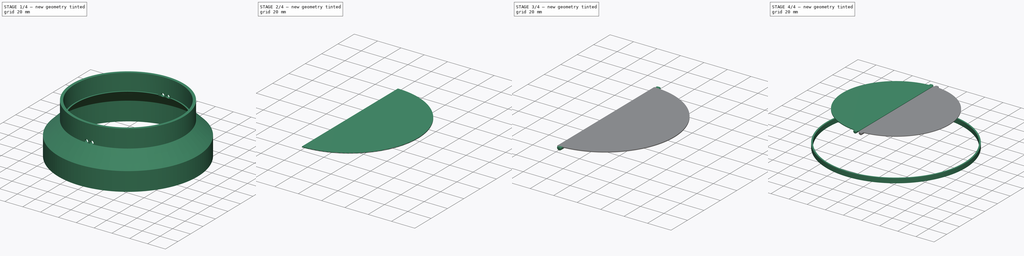
[diagram: build sequence overview — one tinted view per stage of 4, left to right]
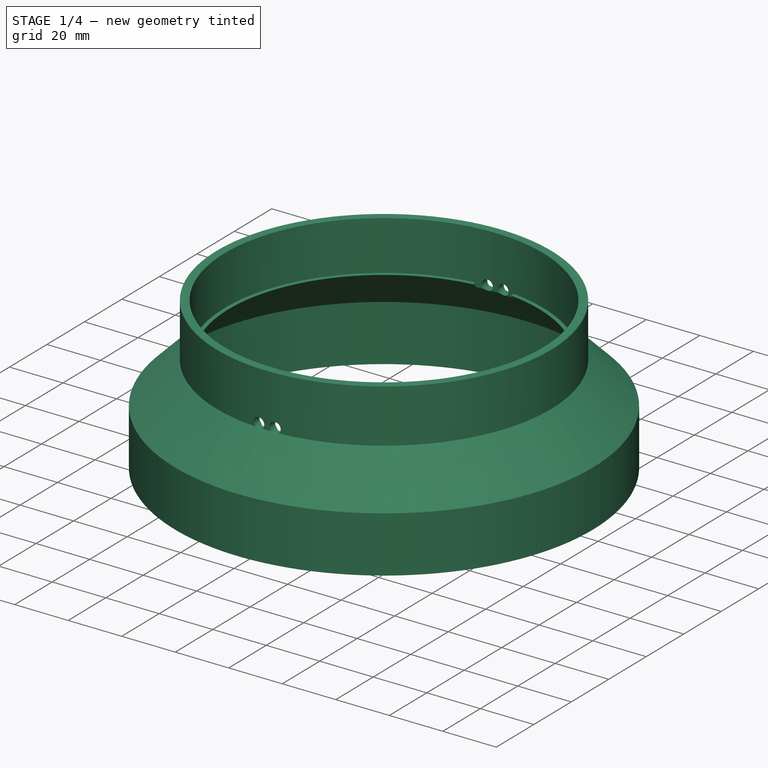
[diagram: stage 1 of 4 — iso view after this stage's code; geometry added in this stage tinted green]
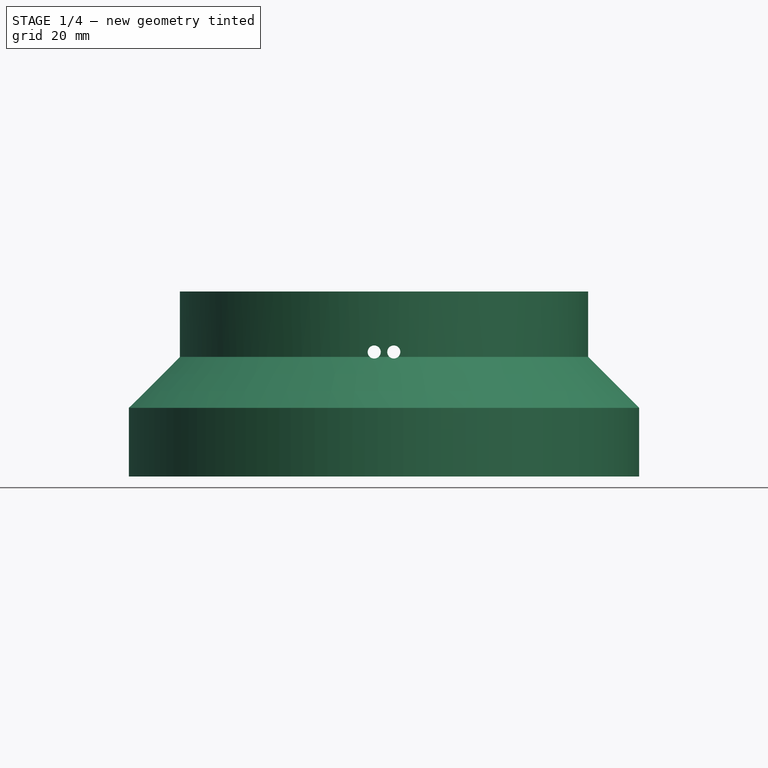
[diagram: stage 1 of 4 — front view after this stage's code; geometry added in this stage tinted green]
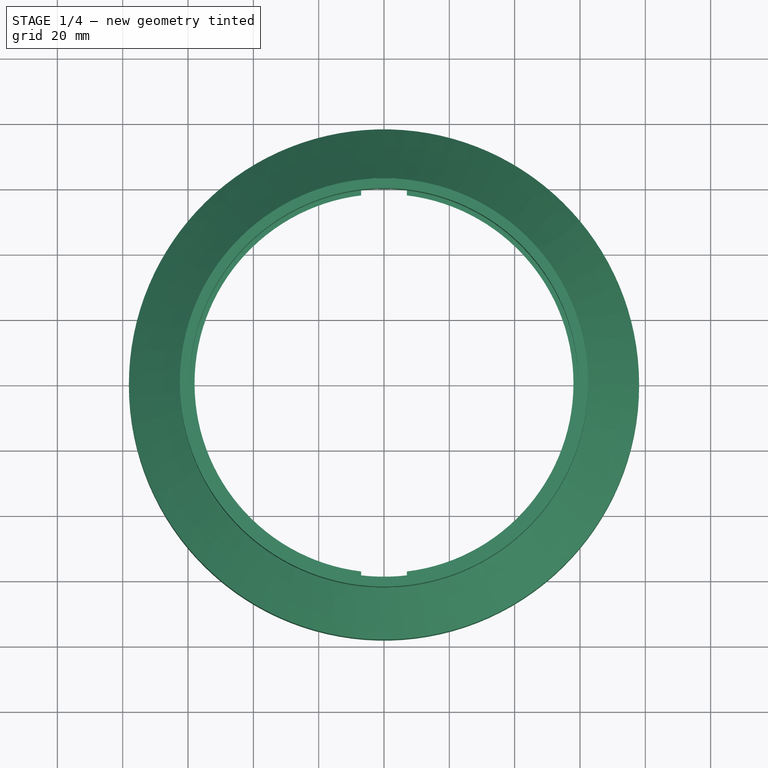
[diagram: stage 1 of 4 — top view after this stage's code; geometry added in this stage tinted green]
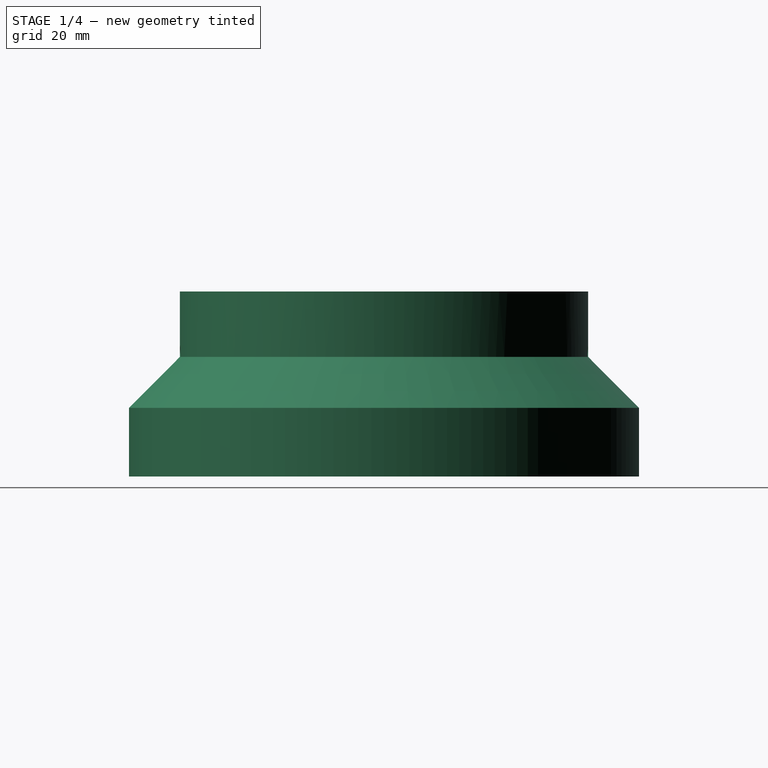
[diagram: stage 1 of 4 — right view after this stage's code; geometry added in this stage tinted green]
FCSTD DOCUMENT  (FreeCAD 0.21R33694 (Git))
Label: adapter
License: All rights reserved
LicenseURL: http://en.wikipedia.org/wiki/All_rights_reserved
objects: Sketcher::SketchObject×8, PartDesign::Body×3, PartDesign::Pocket×3, PartDesign::Plane×3, PartDesign::Pad×3, Part::FeaturePython×3, PartDesign::Revolution×2, PartDesign::Fillet×2, Spreadsheet::Sheet×1, PartDesign::SubShapeBinder×1, PartDesign::ShapeBinder×1
note: 39 computed .brp shape members not serialized (recipe doc carries the construction recipe); baked Part::Feature solids carry a one-line shape summary decoded from their .brp

FEATURE [PartDesign::Body] Body001  label="ring"
  Group = -> [Sketch001,Revolution]
  Origin = -> Origin001
  Tip = -> Revolution
FEATURE [PartDesign::Revolution] Revolution001
  Angle = 360
  Axis = (0,-2e-16,1)
  Base = (0,0,0)
  Placement = pos=(0,0,0) rot=(1,0,0;1.5708rad)
  Profile = -> Sketch
  ReferenceAxis = -> Sketch [V_Axis]
  Reversed = true
FEATURE [Sketcher::SketchObject] Sketch002  label="Holes"
  ExternalGeometry = -> [Sketch,Revolution001]
  FullyConstrained = true
  MapMode = 5
  Placement = pos=(0,0,0) rot=(1,0,0;1.5708rad)
  Support = -> [XZ_Plane]
  expr: Constraints[3] = <<dims>>.hole_diameter
  sketch-geometry (3):
    g0: Circle CenterX=3 CenterY=38.1 CenterZ=0 NormalX=0 NormalY=0 NormalZ=1 AngleXU=0 Radius=2
    g1: GeomPoint X=1 Y=38.1 Z=0
    g2: Circle CenterX=-3 CenterY=38.1 CenterZ=0 NormalX=0 NormalY=0 NormalZ=1 AngleXU=0 Radius=2
  constraints (7):
    c: PointOnObject(g1,g0)
    c: Horizontal(g1,g0)
    c: DistanceX(g-1,g1) = 1
    c: Diameter(g0) = 4
    c: Equal(g0,g2) = 4
    c: Symmetric(g0,g2,g-2)
    c: PointOnObject(g0,g-4)
FEATURE [PartDesign::Pocket] Pocket
  BaseFeature = -> Revolution001
  Direction = (0,1,2e-16)
  Length = 5
  Length2 = 5
  Midplane = true
  Placement = pos=(0,0,0) rot=(1,0,0;1.5708rad)
  Profile = -> Sketch002
  ReferenceAxis = -> Sketch002 [N_Axis]
  Type = 1
FEATURE [PartDesign::Plane] DatumPlane002  label="Plane-ledge"
  Length = 64.3597
  MapMode = 45
  Placement = pos=(-3.7e-14,-5.3e-15,38.1) rot=(0,0,1;1.5708rad)
  ResizeMode = 0
  Support = -> [Pocket]
  Width = 117.46
FEATURE [Sketcher::SketchObject] Sketch003  label="Sketch-ledge-cutout"
  ExternalGeometry = -> [Pocket,Sketch002]
  FullyConstrained = true
  MapMode = 5
  Placement = pos=(-3.7e-14,-5.3e-15,38.1) rot=(0,0,1;1.5708rad)
  Support = -> [DatumPlane002]
  expr: Constraints[11] = .Constraints.ledge_room
  sketch-geometry (4):
    g0: LineSegment StartX=-59.0868 StartY=7 StartZ=0 EndX=59.0868 EndY=7 EndZ=0
    g1: LineSegment StartX=59.0868 StartY=-7 StartZ=0 EndX=-59.0868 EndY=-7 EndZ=0
    g2: ArcOfCircle CenterX=-3.5e-15 CenterY=-3.76e-14 CenterZ=0 NormalX=0 NormalY=0 NormalZ=1 AngleXU=0 Radius=59.5 StartAngle=3.02367 EndAngle=3.25951
    g3: ArcOfCircle CenterX=-3.5e-15 CenterY=-3.76e-14 CenterZ=0 NormalX=0 NormalY=0 NormalZ=1 AngleXU=0 Radius=59.5 StartAngle=6.16527 EndAngle=6.40111
  constraints (12):
    c: PointOnObject(g0,g-3)
    c: PointOnObject(g0,g-3)
    c: Horizontal(g0)
    c: Horizontal(g1)
    c: Coincident(g2,g-3)
    c: Coincident(g2,g1)
    c: Coincident(g2,g0)
    c: Coincident(g3,g2)
    c: Coincident(g3,g0)
    c: Coincident(g3,g1)
    c: Distance(g-4,g0) = 2  'ledge_room'
    c: Distance(g-5,g1) = 2
FEATURE [PartDesign::Pocket] Pocket001
  BaseFeature = -> Pocket
  Direction = (0,2e-16,-1)
  Length = 5
  Length2 = 5
  Placement = pos=(0,0,0) rot=(1,0,0;1.5708rad)
  Profile = -> Sketch003
  ReferenceAxis = -> Sketch003 [N_Axis]
  Type = 1
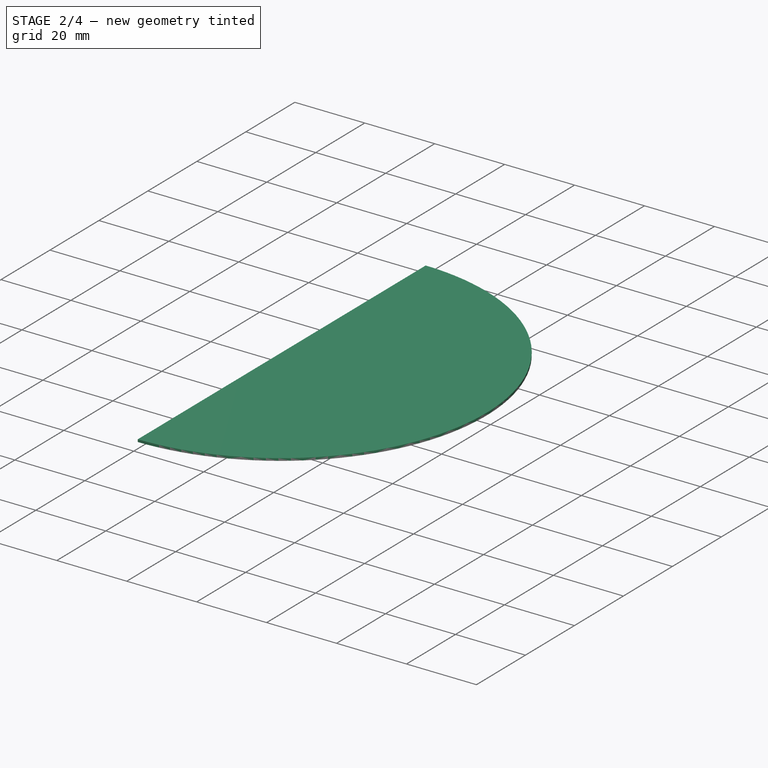
[diagram: stage 2 of 4 — iso view after this stage's code; geometry added in this stage tinted green]
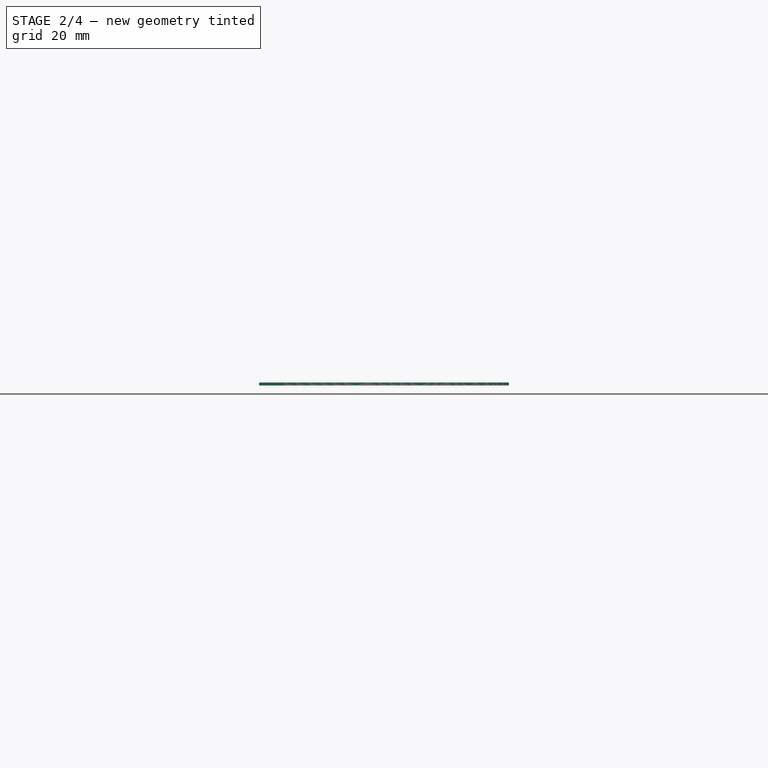
[diagram: stage 2 of 4 — front view after this stage's code; geometry added in this stage tinted green]
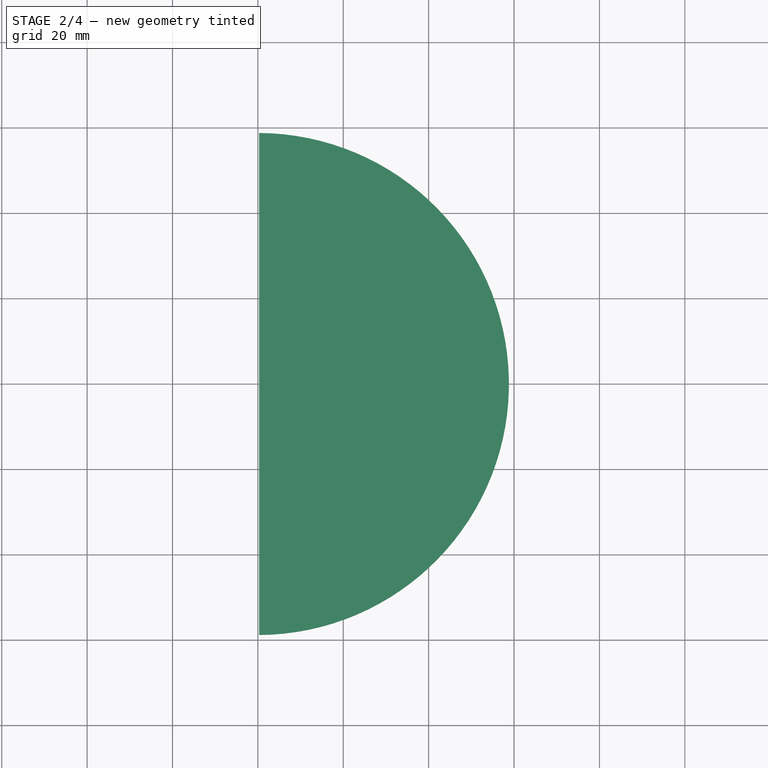
[diagram: stage 2 of 4 — top view after this stage's code; geometry added in this stage tinted green]
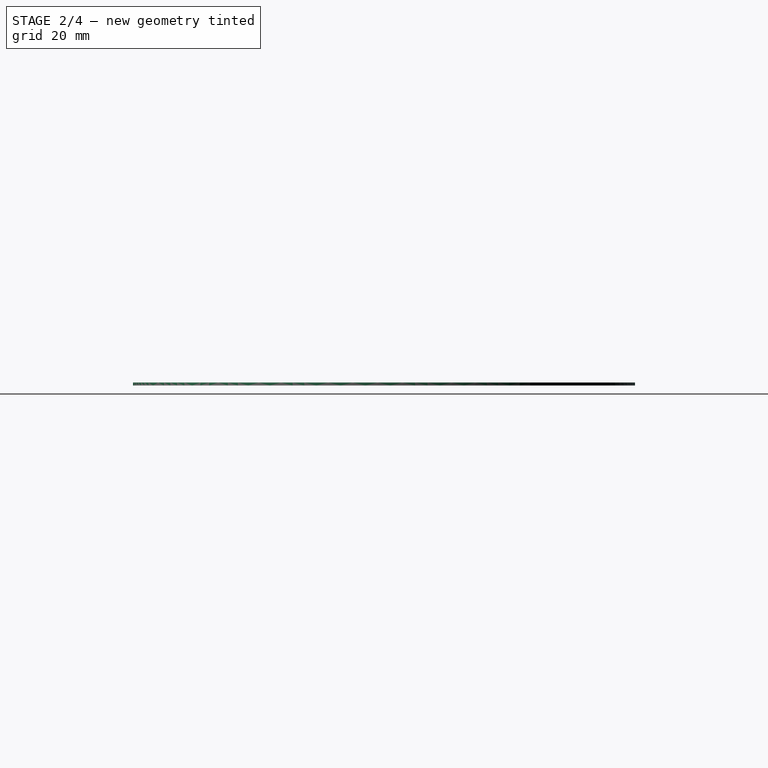
[diagram: stage 2 of 4 — right view after this stage's code; geometry added in this stage tinted green]
FEATURE [PartDesign::SubShapeBinder] Binder
  BindCopyOnChange = 0
  BindMode = 0
  ClaimChildren = false
  Context = -> Body002 [Binder.]
  Fuse = false
  MakeFace = true
  OffsetFill = false
  OffsetIntersection = false
  OffsetJoinType = 0
  OffsetOpenResult = false
  PartialLoad = false
  Relative = true
  Support = -> [Body[Sketch002.Edge1]]
  _Version = 2
FEATURE [PartDesign::Plane] DatumPlane003
  Length = 178.78
  MapMode = 5
  Placement = pos=(0,0,0) rot=(0,0.707107,0.707107;3.14159rad)
  ResizeMode = 0
  Support = -> [Binder]
  Width = 104.18
FEATURE [Sketcher::SketchObject] Sketch006  label="Sketch rotation stop"
  AttachmentOffset = pos=(0,0,4) rot=(0,0,1;0rad)
  ExternalGeometry = -> [Pocket001,Sketch002]
  FullyConstrained = true
  MapMode = 5
  Placement = pos=(-3.71e-14,-6.1e-15,42.1) rot=(0,0,1;1.5708rad)
  Support = -> [DatumPlane002]
  expr: .AttachmentOffset.Base.z = <<dims>>.hole_diameter
  sketch-geometry (5):
    g0: LineSegment StartX=59.4243 StartY=3 StartZ=0 EndX=56.9243 EndY=3 EndZ=0
    g1: LineSegment StartX=56.9243 StartY=3 StartZ=0 EndX=56.9243 EndY=-3 EndZ=0
    g2: LineSegment StartX=56.9243 StartY=-3 StartZ=0 EndX=59.4243 EndY=-3 EndZ=0
    g3: ArcOfCircle CenterX=-3.5e-15 CenterY=-3.76e-14 CenterZ=0 NormalX=0 NormalY=0 NormalZ=1 AngleXU=0 Radius=59.5 StartAngle=6.23274 EndAngle=6.33363
    g4: GeomPoint X=-1.8e-15 Y=-3 Z=0
  constraints (13):
    c: PointOnObject(g0,g-3)
    c: Horizontal(g0)
    c: Coincident(g0,g1)
    c: Coincident(g1,g2)
    c: PointOnObject(g2,g-3)
    c: Horizontal(g2)
    c: Coincident(g3,g-3)
    c: Coincident(g3,g0)
    c: PointOnObject(g3,g2)
    c: Symmetric(g-4,g-4,g4)
    c: Symmetric(g1,g0,g-1)
    c: Horizontal(g4,g1)
    c: DistanceX(g2,g2) = 2.5
FEATURE [PartDesign::Pad] Pad002  label="Pad rotation stop"
  BaseFeature = -> Pocket001
  Direction = (0,-2e-16,1)
  Length = 2.5
  Length2 = 10
  Placement = pos=(0,0,0) rot=(1,0,0;1.5708rad)
  Profile = -> Sketch006
  ReferenceAxis = -> Sketch006 [N_Axis]
  Type = 0
FEATURE [Sketcher::SketchObject] Sketch007
  ExternalGeometry = -> [Pad002]
  FullyConstrained = true
  MapMode = 5
  Placement = pos=(-3,1.3e-15,-1e-16) rot=(0.707107,0,-0.707107;3.14159rad)
  Support = -> [Pad002]
  sketch-geometry (3):
    g0: LineSegment StartX=-44.6 StartY=-56.9243 StartZ=0 EndX=-42.1 EndY=-59.4243 EndZ=0
    g1: LineSegment StartX=-42.1 StartY=-59.4243 StartZ=0 EndX=-42.1 EndY=-56.9243 EndZ=0
    g2: LineSegment StartX=-42.1 StartY=-56.9243 StartZ=0 EndX=-44.6 EndY=-56.9243 EndZ=0
  constraints (6):
    c: Coincident(g-3,g0)
    c: Coincident(g0,g-4)
    c: Coincident(g0,g1)
    c: Coincident(g1,g-3)
    c: Coincident(g1,g2)
    c: Coincident(g2,g0)
FEATURE [PartDesign::Pocket] Pocket002
  BaseFeature = -> Pad002
  Direction = (1,0,0)
  Length = 0
  Length2 = 5
  Placement = pos=(0,0,0) rot=(1,0,0;1.5708rad)
  Profile = -> Sketch007
  ReferenceAxis = -> Sketch007 [N_Axis]
  Reversed = true
  Type = 3
  UpToFace = -> Pad002 [Face27]
  UseCustomVector = true
FEATURE [PartDesign::Body] Body  label="tube"
  Group = -> [Sketch,Revolution001,Sketch002,Pocket,DatumPlane002,Sketch003,Pocket001,Sketch006,Pad002,Sketch007,Pocket002]
  Origin = -> Origin
  Tip = -> Pocket002
FEATURE [PartDesign::ShapeBinder] ShapeBinder
  Support = -> [Body]
  TraceSupport = false
FEATURE [PartDesign::Plane] DatumPlane
  Length = 187.44
  MapMode = 45
  Placement = pos=(2.7e-14,-1.6e-14,38.1) rot=(0,0,1;1.5708rad)
  ResizeMode = 0
  Support = -> [ShapeBinder]
  Width = 187.44
FEATURE [Sketcher::SketchObject] Sketch004  label="Sketch-Lid"
  ExternalGeometry = -> [ShapeBinder]
  FullyConstrained = true
  MapMode = 5
  Placement = pos=(2.7e-14,-1.6e-14,38.1) rot=(0,0,1;1.5708rad)
  Support = -> [DatumPlane]
  sketch-geometry (3):
    g0: Circle CenterX=5.1e-15 CenterY=2.61e-14 CenterZ=0 NormalX=0 NormalY=0 NormalZ=1 AngleXU=0 Radius=58.8
    g1: ArcOfCircle CenterX=5.1e-15 CenterY=2.61e-14 CenterZ=0 NormalX=0 NormalY=0 NormalZ=1 AngleXU=0 Radius=58.8 StartAngle=3.14669 EndAngle=6.27808
    g2: LineSegment StartX=58.7992 StartY=-0.3 StartZ=0 EndX=-58.7992 EndY=-0.3 EndZ=0
  constraints (8):
    c: Coincident(g0,g-3)
    c: Distance(g0,g-3) = 0.7
    c: PointOnObject(g1,g0)
    c: Coincident(g1,g0)
    c: Coincident(g2,g1)
    c: Coincident(g2,g1)
    c: Distance(g1,g2) = 0.3
    c: Horizontal(g2)
FEATURE [PartDesign::Pad] Pad  label="Pad-Lid"
  Direction = (-1e-16,-1e-16,1)
  Length = 0.7
  Length2 = 10
  Placement = pos=(2.7e-14,-1.6e-14,38.1) rot=(0,0,1;1.5708rad)
  Profile = -> Sketch004
  ReferenceAxis = -> Sketch004 [N_Axis]
  Type = 0
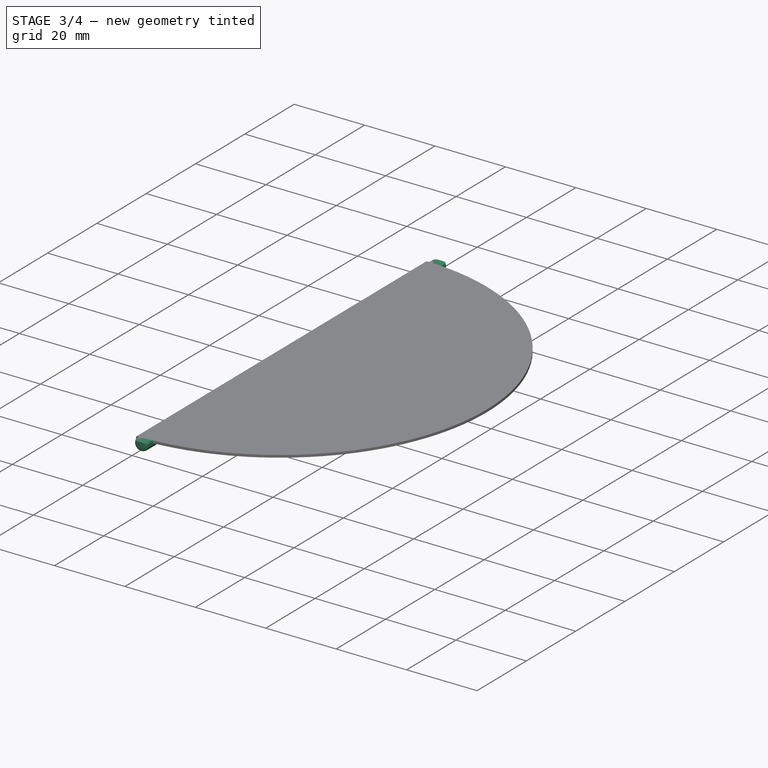
[diagram: stage 3 of 4 — iso view after this stage's code; geometry added in this stage tinted green]
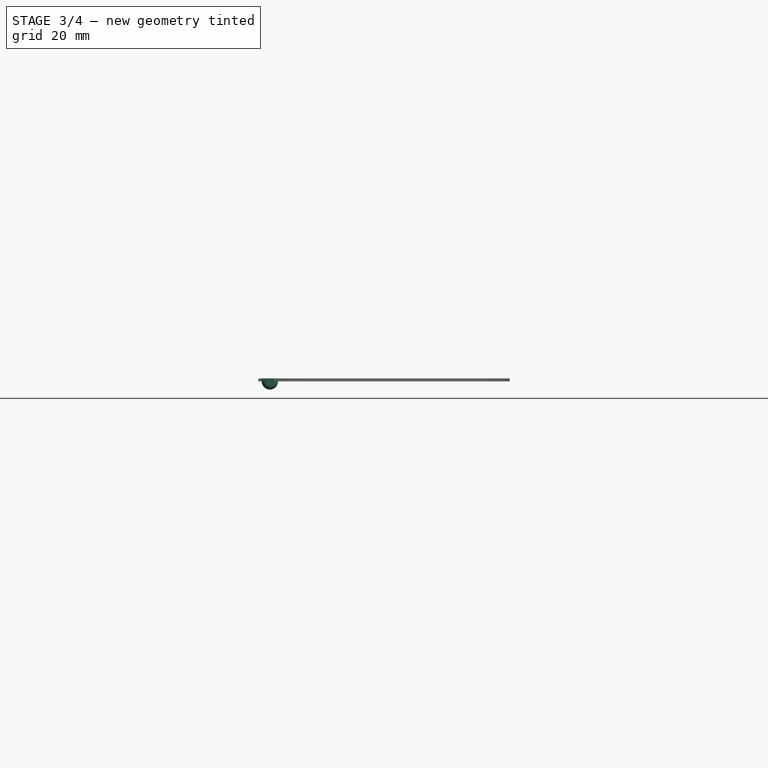
[diagram: stage 3 of 4 — front view after this stage's code; geometry added in this stage tinted green]
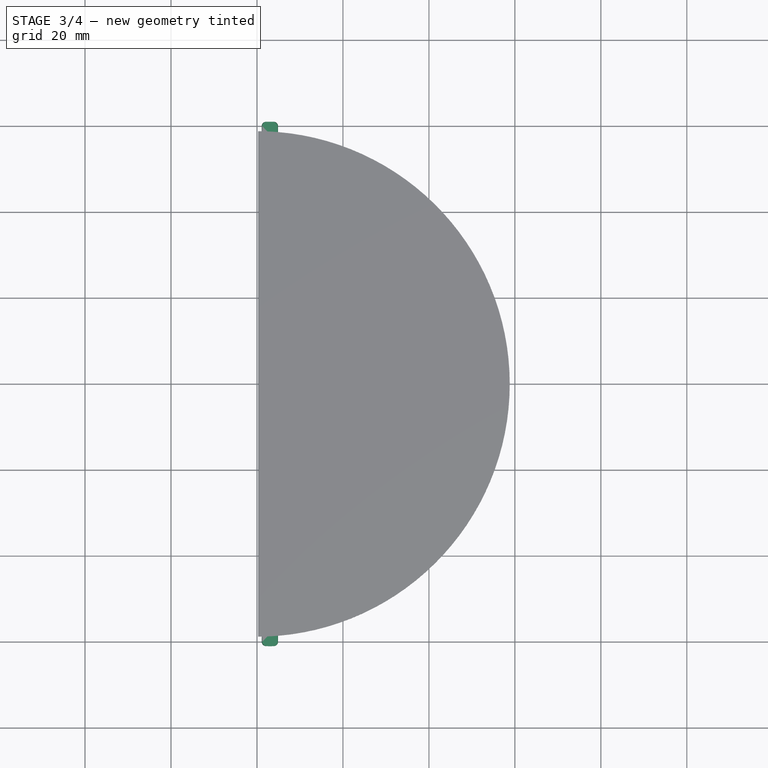
[diagram: stage 3 of 4 — top view after this stage's code; geometry added in this stage tinted green]
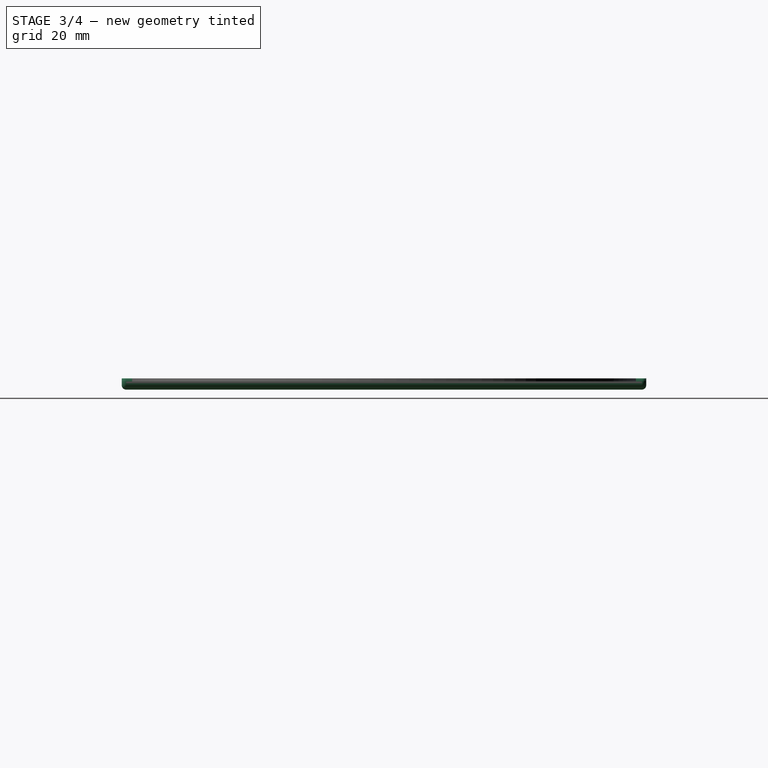
[diagram: stage 3 of 4 — right view after this stage's code; geometry added in this stage tinted green]
FEATURE [Sketcher::SketchObject] Sketch005  label="Sketch-Axis"
  ExternalGeometry = -> [Pad,Binder]
  FullyConstrained = true
  MapMode = 5
  Placement = pos=(0,0,0) rot=(0,0.707107,0.707107;3.14159rad)
  Support = -> [DatumPlane003]
  sketch-geometry (3):
    g0: ArcOfCircle CenterX=-3 CenterY=38.1 CenterZ=0 NormalX=0 NormalY=0 NormalZ=1 AngleXU=0 Radius=1.9 StartAngle=2.76428 EndAngle=6.6605
    g1: LineSegment StartX=-4.76635 StartY=38.8 StartZ=0 EndX=-1.23365 EndY=38.8 EndZ=0
    g2: Circle CenterX=-3 CenterY=38.1 CenterZ=0 NormalX=0 NormalY=0 NormalZ=1 AngleXU=0 Radius=1.9
  constraints (8):
    c: Coincident(g0,g-4)
    c: Coincident(g1,g0)
    c: Coincident(g1,g0)
    c: Coincident(g2,g0)
    c: Distance(g2,g-4) = 0.1
    c: PointOnObject(g0,g2)
    c: PointOnObject(g0,g-3)
    c: PointOnObject(g0,g-3)
FEATURE [PartDesign::Pad] Pad001  label="Axis"
  BaseFeature = -> Pad
  Direction = (0,1,2e-16)
  Length = 122
  Length2 = 10
  Midplane = true
  Placement = pos=(2.7e-14,-1.6e-14,38.1) rot=(0,0,1;1.5708rad)
  Profile = -> Sketch005
  ReferenceAxis = -> Sketch005 [N_Axis]
  Type = 0
FEATURE [PartDesign::Fillet] Fillet
  Base = -> Pad001 [Edge8,Edge12]
  BaseFeature = -> Pad001
  Placement = pos=(2.7e-14,-1.6e-14,38.1) rot=(0,0,1;1.5708rad)
  Radius = 1
  SupportTransform = false
  UseAllEdges = false
FEATURE [Part::FeaturePython] Holes_001  # a2plus imported part (geometry in sourceFile) (typed FeaturePython)
  Placement = pos=(0,0,0) rot=(1,0,0;1.5708rad)
  a2p_Version = 0.4.60i
  fixedPosition = true
  localSourceObject = Sketch002
  objectType = a2pPart
  sourceFile = converted
  subassemblyImport = false
  timeLastImport = 1.70455e+09
  updateColors = true
FEATURE [PartDesign::Fillet] Fillet001
  Base = -> Fillet [Edge34]
  BaseFeature = -> Fillet
  Placement = pos=(2.7e-14,-1.6e-14,38.1) rot=(0,0,1;1.5708rad)
  Radius = 0.3
  SupportTransform = false
  UseAllEdges = false
FEATURE [PartDesign::Body] Body002  label="lid"
  Group = -> [ShapeBinder,Binder,DatumPlane,Sketch004,Pad,DatumPlane003,Sketch005,Pad001,Fillet,Fillet001]
  Origin = -> Origin002
  Tip = -> Fillet001
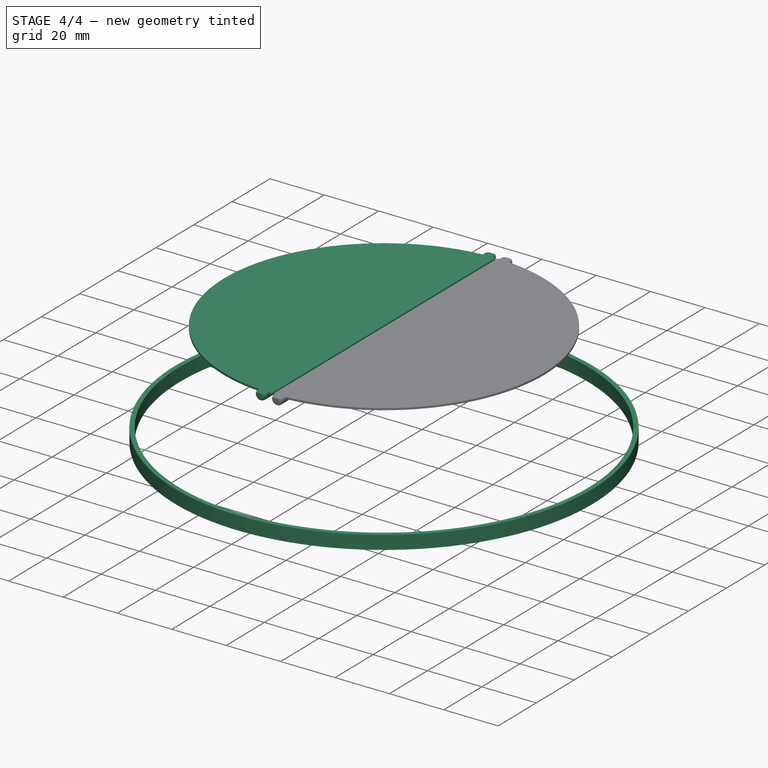
[diagram: stage 4 of 4 — iso view after this stage's code; geometry added in this stage tinted green]
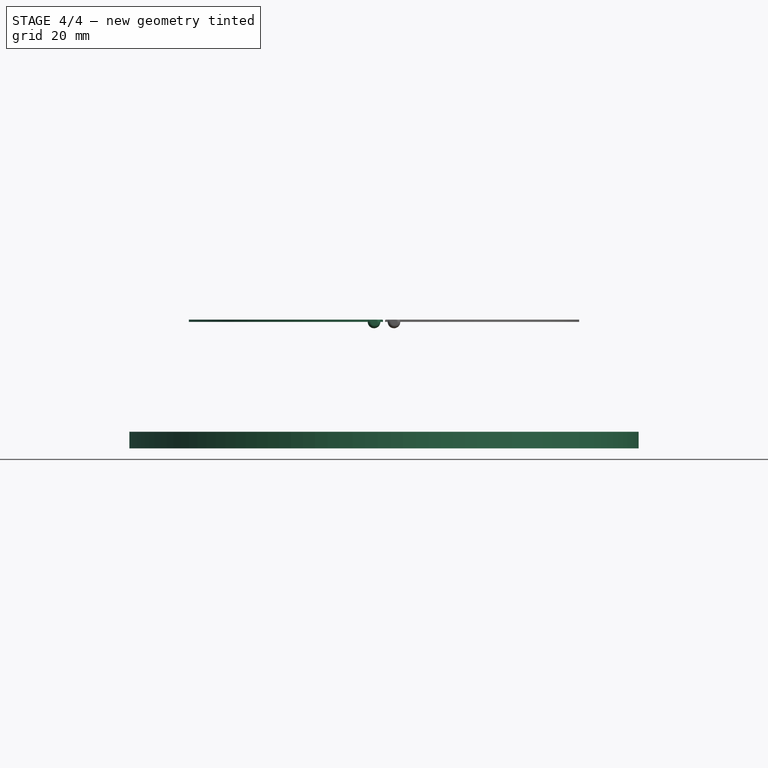
[diagram: stage 4 of 4 — front view after this stage's code; geometry added in this stage tinted green]
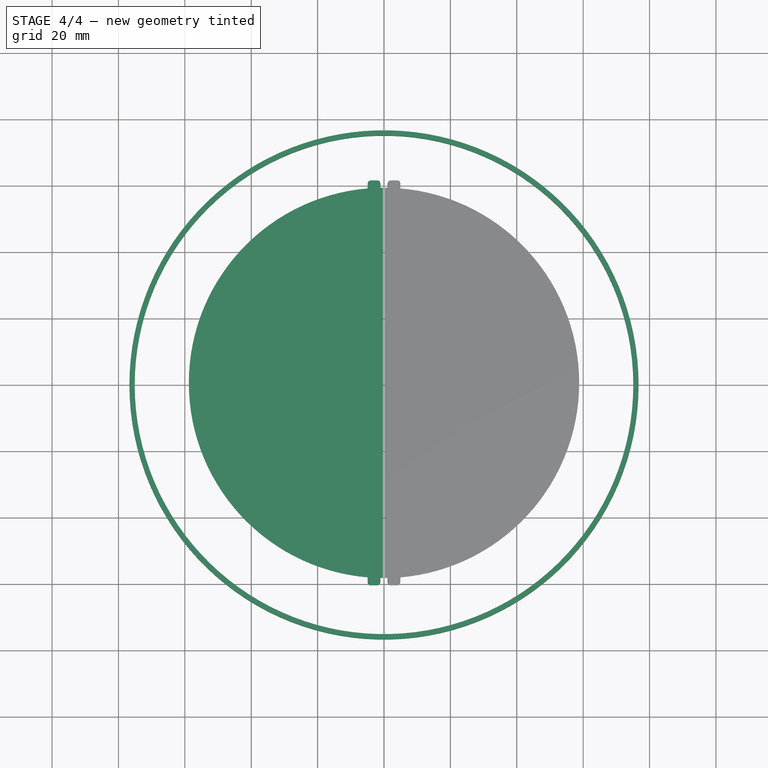
[diagram: stage 4 of 4 — top view after this stage's code; geometry added in this stage tinted green]
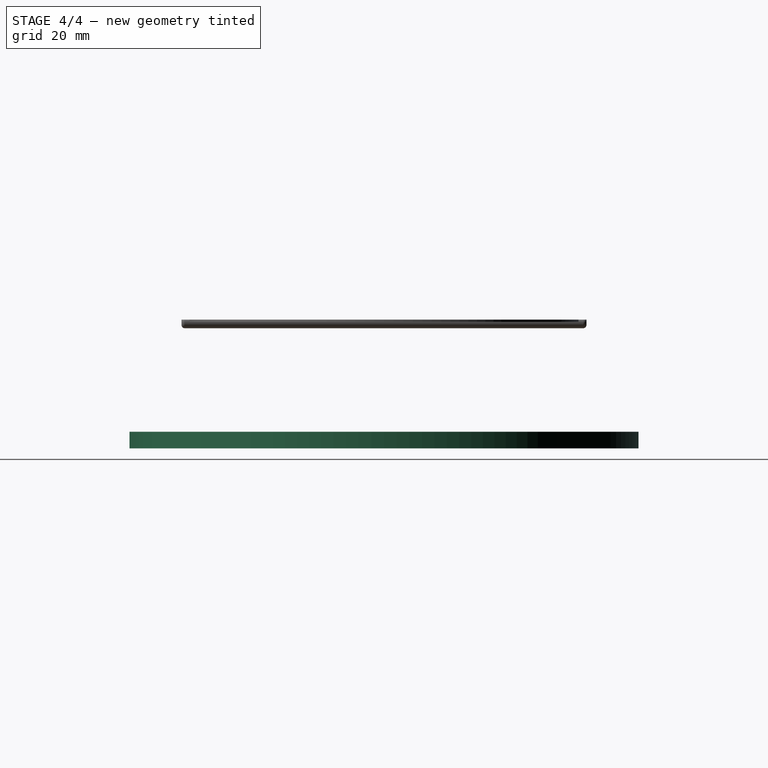
[diagram: stage 4 of 4 — right view after this stage's code; geometry added in this stage tinted green]
FEATURE [Sketcher::SketchObject] Sketch  label="Profile"
  FullyConstrained = true
  MapMode = 5
  Placement = pos=(0,0,0) rot=(1,0,0;1.5708rad)
  Support = -> [XZ_Plane]
  expr: .Constraints.wall = <<dims>>.wall
  expr: Constraints[12] = <<dims>>.lower_diameter / 2
  expr: Constraints[14] = <<dims>>.lower_height
  expr: Constraints[16] = <<dims>>.connection_angle + 90
  expr: Constraints[17] = <<dims>>.wall
  expr: Constraints[18] = <<dims>>.wall
  expr: Constraints[21] = <<dims>>.upper_diameter / 2
  expr: Constraints[22] = <<dims>>.upper_height
  sketch-geometry (10):
    g0: LineSegment StartX=78.1 StartY=0 StartZ=0 EndX=78.1 EndY=21 EndZ=0
    g1: LineSegment StartX=78.1 StartY=21 StartZ=0 EndX=62.5 EndY=36.6 EndZ=0
    g2: LineSegment StartX=62.5 StartY=36.6 StartZ=0 EndX=62.5 EndY=56.6 EndZ=0
    g3: LineSegment StartX=62.5 StartY=56.6 StartZ=0 EndX=59.5 EndY=56.6 EndZ=0
    g4: LineSegment StartX=58 StartY=38.1 StartZ=0 EndX=75.1 EndY=21 EndZ=0
    g5: LineSegment StartX=75.1 StartY=21 StartZ=0 EndX=75.1 EndY=0 EndZ=0
    g6: LineSegment StartX=75.1 StartY=0 StartZ=0 EndX=78.1 EndY=0 EndZ=0
    g7: GeomPoint X=0 Y=56.6 Z=0
    g8: LineSegment StartX=59.5 StartY=56.6 StartZ=0 EndX=59.5 EndY=38.1 EndZ=0
    g9: LineSegment StartX=59.5 StartY=38.1 StartZ=0 EndX=58 EndY=38.1 EndZ=0
  constraints (29):
    c: PointOnObject(g0,g-1)
    c: Vertical(g0)
    c: Coincident(g0,g1)
    c: Coincident(g1,g2)
    c: Vertical(g2)
    c: Coincident(g2,g3)
    c: Horizontal(g3)
    c: Coincident(g4,g5)
    c: PointOnObject(g5,g-1)
    c: Vertical(g5)
    c: Coincident(g5,g6)
    c: Coincident(g6,g0)
    c: DistanceX(g-1,g5) = 75.1
    c: DistanceX(g6,g6) = 3  'wall'
    c: DistanceY(g5,g4) = 21
    c: Parallel(g4,g1)
    c: Angle(g4,g5) = 2.35619
    c: DistanceX(g3,g3) = 3
    c: Distance(g0,g4) = 3
    c: PointOnObject(g7,g-2)
    c: Horizontal(g2,g7)
    c: DistanceX(g7,g2) = 62.5
    c: DistanceY(g2,g2) = 20
    c: Coincident(g3,g8)
    c: Vertical(g8)
    c: Coincident(g8,g9)
    c: Coincident(g9,g4)
    c: Horizontal(g9)
    c: DistanceX(g9,g9) = 1.5
FEATURE [Sketcher::SketchObject] Sketch001
  FullyConstrained = true
  MapMode = 5
  Placement = pos=(0,0,0) rot=(1,0,0;1.5708rad)
  Support = -> [XZ_Plane001]
  expr: Constraints[10] = <<dims>>.lower_diameter / 2
  sketch-geometry (4):
    g0: LineSegment StartX=75.1 StartY=5 StartZ=0 EndX=76.7 EndY=5 EndZ=0
    g1: LineSegment StartX=76.7 StartY=5 StartZ=0 EndX=76.7 EndY=0 EndZ=0
    g2: LineSegment StartX=76.7 StartY=0 StartZ=0 EndX=75.1 EndY=0 EndZ=0
    g3: LineSegment StartX=75.1 StartY=0 StartZ=0 EndX=75.1 EndY=5 EndZ=0
  constraints (12):
    c: Coincident(g0,g1)
    c: Coincident(g1,g2)
    c: Coincident(g2,g3)
    c: Coincident(g3,g0)
    c: Horizontal(g0)
    c: Horizontal(g2)
    c: Vertical(g1)
    c: Vertical(g3)
    c: PointOnObject(g2,g-1)
    c: DistanceY(g3,g3) = 5
    c: DistanceX(g-1,g2) = 75.1
    c: DistanceX(g2,g2) = 1.6
FEATURE [Spreadsheet::Sheet] Spreadsheet  label="dims"
  cells = A2='lower diameter; B2(lower_diameter)==150.2 mm; A3='lower height; B3(lower_height)==21 mm; A4='upper diameter; B4(upper_diameter)==125 mm; A5='upper height; B5(upper_height)==20 mm; A6='wall; B6(wall)==3 mm; A7='connection angle; B7(connection_angle)=45; A8='hole diameter; B8(hole_diameter)==4 mm
FEATURE [PartDesign::Revolution] Revolution
  Angle = 360
  Axis = (0,-2e-16,1)
  Base = (0,0,0)
  Placement = pos=(0,0,0) rot=(1,0,0;1.5708rad)
  Profile = -> Sketch001
  ReferenceAxis = -> Sketch001 [V_Axis]
  Reversed = true
FEATURE [Part::FeaturePython] lid_001  # a2plus imported part (geometry in sourceFile) (typed FeaturePython)
  a2p_Version = 0.4.60i
  fixedPosition = false
  localSourceObject = Body002
  objectType = a2pPart
  sourceFile = converted
  subassemblyImport = false
  timeLastImport = 1.70456e+09
  updateColors = true
FEATURE [Part::FeaturePython] b_lid_002_  label="lid_002"  # a2plus imported part (geometry in sourceFile) (typed FeaturePython)
  Placement = pos=(0,0,0) rot=(0,0,1;3.14159rad)
  a2p_Version = 0.4.60i
  fixedPosition = false
  localSourceObject = Body002
  objectType = a2pPart
  sourceFile = converted
  subassemblyImport = false
  timeLastImport = 1.70456e+09
  updateColors = true
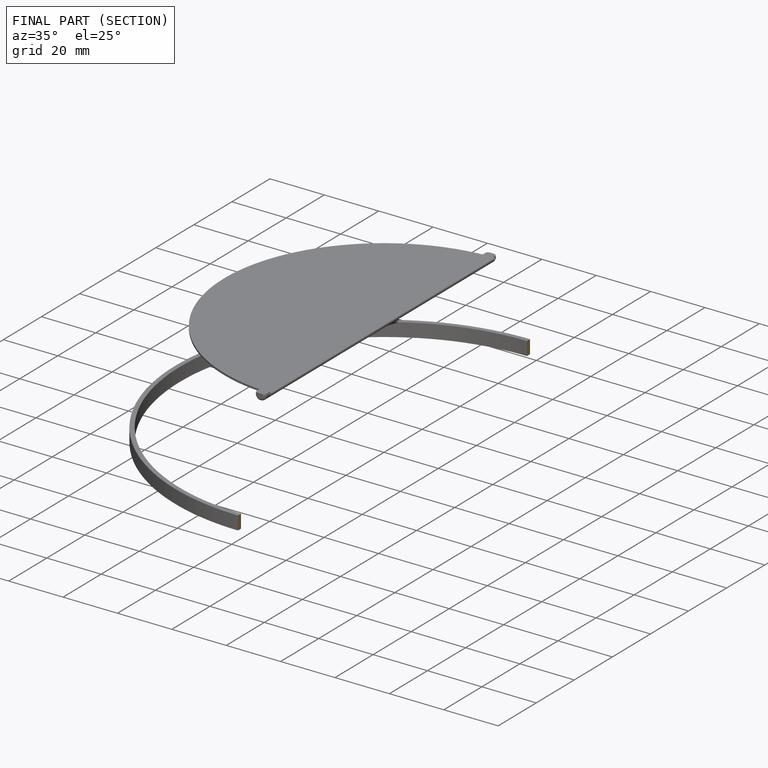
[diagram: finished part — half-section view (interior)]
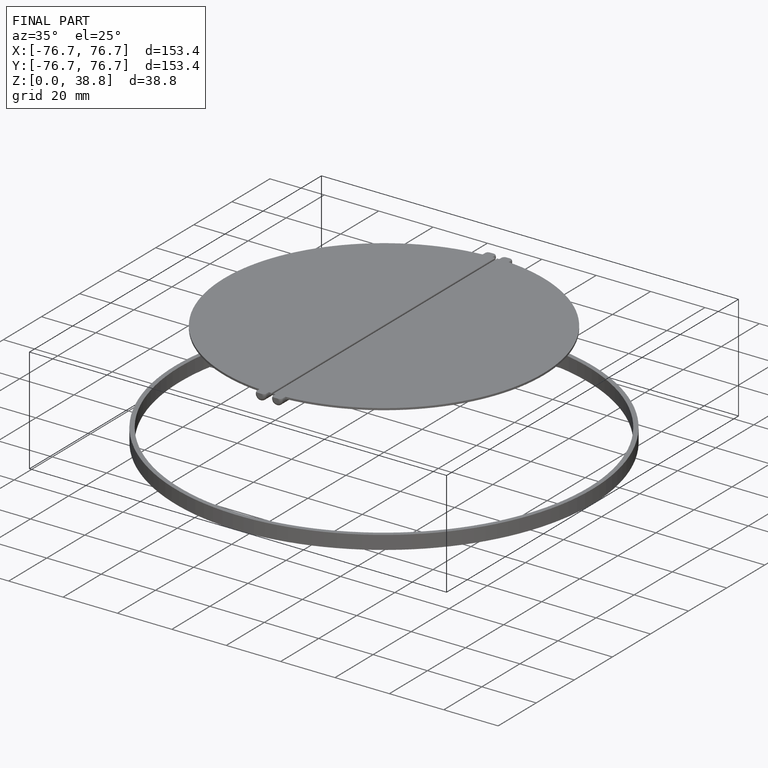
[diagram: finished part — iso view with bounding-box wireframe]
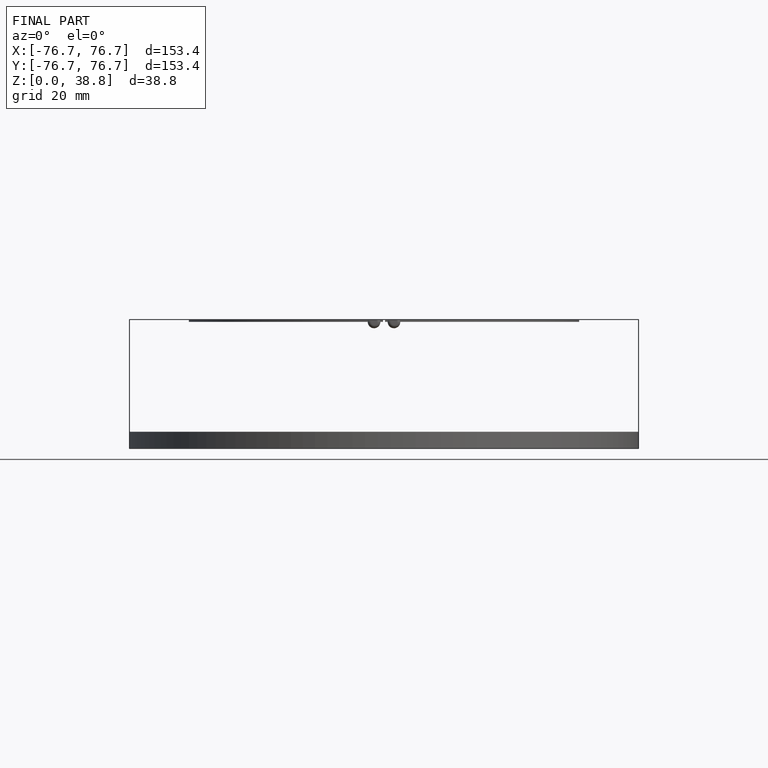
[diagram: finished part — front view with bounding-box wireframe]
